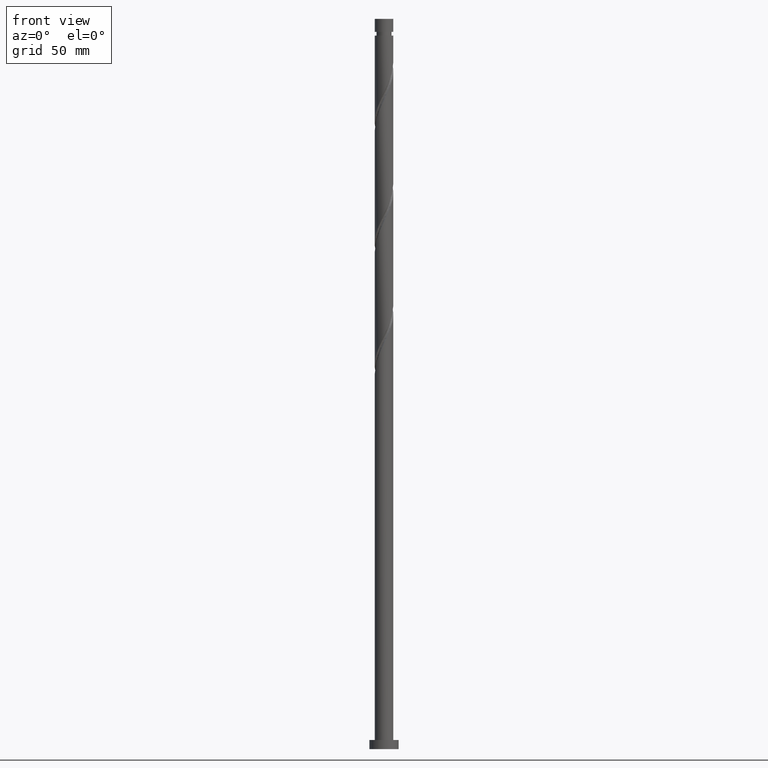
[diagram: clean part render]
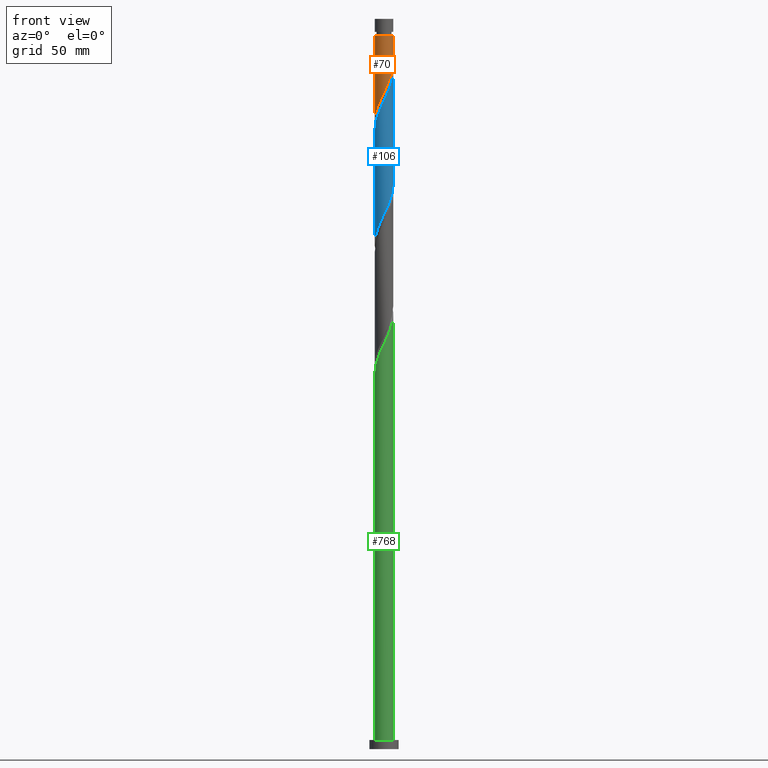
[diagram: same view with three faces highlighted in distinct colors, each labeled with its STEP entity id]
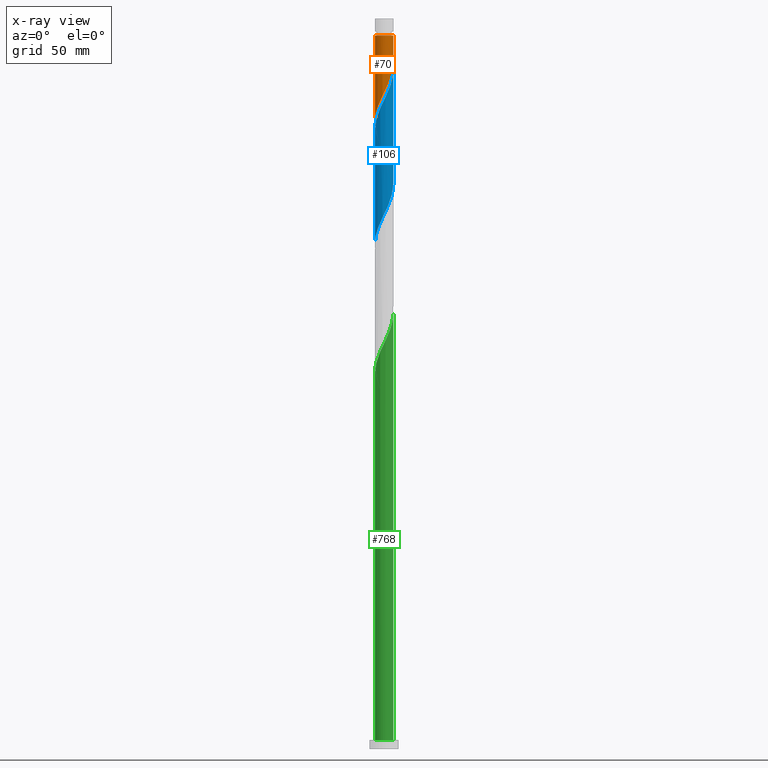
[diagram: x-ray of the same camera — body ghosted, the three highlighted faces saturated]
A machine part, front view with three faces highlighted in distinct colors.
The next image is the same camera in x-ray (body ghosted, the three faces saturated) — at least one of them is partly hidden behind the body in this view.
Their STEP definitions:

[orange] entity #70 — the highlighted cylindrical surface (edge-blend (fillet) strip) has radius 5.1 mm, axis along (-0, -0, -1).
#29 = VERTEX_POINT ( 'NONE', #1865 ) ;
#41 = CARTESIAN_POINT ( 'NONE',  ( 4.703541288989194769, -2.043044105940180710, 371.9575417927412673 ) ) ;
#70 = ADVANCED_FACE ( 'NONE', ( #319 ), #788, .T. ) ;
#85 = CARTESIAN_POINT ( 'NONE',  ( -0.4895762179909071699, -5.104668941549566519, 358.6242084594079529 ) ) ;
#103 = CARTESIAN_POINT ( 'NONE',  ( -4.121098741290858847, -3.051864191043557994, 349.7353195705190387 ) ) ;
#149 = EDGE_LOOP ( 'NONE', ( #749, #1388, #1095, #627 ) ) ;
#232 = DIRECTION ( 'NONE',  ( -1.000000000000000000, 0.000000000000000000, 0.000000000000000000 ) ) ;
#250 = CARTESIAN_POINT ( 'NONE',  ( -4.665561090286798773, -2.128349028905951457, 347.5130973482968102 ) ) ;
#263 = CARTESIAN_POINT ( 'NONE',  ( 3.820951375190243748, -3.377918084920322528, 368.6242084594081803 ) ) ;
#264 = CARTESIAN_POINT ( 'NONE',  ( 5.100000000000000533, 1.554635203749183559E-15, 376.3052072584851544 ) ) ;
#319 = FACE_OUTER_BOUND ( 'NONE', #149, .T. ) ;
#333 = CARTESIAN_POINT ( 'NONE',  ( -5.099999999999999645, 0.000000000000000000, 400.0000000000000000 ) ) ;
#354 = AXIS2_PLACEMENT_3D ( 'NONE', #1103, #358, #232 ) ;
#358 = DIRECTION ( 'NONE',  ( -0.000000000000000000, -0.000000000000000000, -1.000000000000000000 ) ) ;
#376 = CARTESIAN_POINT ( 'NONE',  ( 5.076705030977431754, -0.4868942682435483116, 375.2908751260747522 ) ) ;
#388 = CARTESIAN_POINT ( 'NONE',  ( 0.5824425476983370320, -5.094908296983734708, 360.8464306816301814 ) ) ;
#395 = CARTESIAN_POINT ( 'NONE',  ( -3.758811671682789068, -3.446931217303476291, 350.8464306816301814 ) ) ;
#405 = CARTESIAN_POINT ( 'NONE',  ( -5.100000000000000533, -3.527826039276993498E-15, 342.9718739251517832 ) ) ;
#412 = VECTOR ( 'NONE', #1901, 1000.000000000000000 ) ;
#415 = CARTESIAN_POINT ( 'NONE',  ( 4.175984872295892103, -2.976319912643618615, 369.7353195705190387 ) ) ;
#447 = AXIS2_PLACEMENT_3D ( 'NONE', #1264, #1608, #526 ) ;
#489 = EDGE_CURVE ( 'NONE', #1335, #2008, #1430, .T. ) ;
#509 = CARTESIAN_POINT ( 'NONE',  ( 5.100000000000000533, 1.554635203749183559E-15, 376.3052072584852112 ) ) ;
#526 = DIRECTION ( 'NONE',  ( -1.000000000000000000, 0.000000000000000000, 0.000000000000000000 ) ) ;
#544 = CARTESIAN_POINT ( 'NONE',  ( -2.960015320744662670, -4.153108390224947932, 353.0686529038524100 ) ) ;
#562 =( BOUNDED_CURVE ( )  B_SPLINE_CURVE ( 2, ( #509, #830, #376, #975, #821, #41, #863, #415, #263, #724, #1948, #1982, #1515, #1200, #1784, #388, #735, #85, #1327, #714, #1034, #1176, #544, #1168, #395, #103, #1641, #250, #871, #1332, #880, #1955, #405 ),
 .UNSPECIFIED., .F., .T. ) 
 B_SPLINE_CURVE_WITH_KNOTS ( ( 3, 2, 2, 2, 2, 2, 2, 2, 2, 2, 2, 2, 2, 2, 2, 2, 3 ),
 ( 0.3045286012773114059, 0.3083333333333333481, 0.3166666666666666519, 0.3250000000000000111, 0.3333333333333333148, 0.3416666666666666741, 0.3499999999999999778, 0.3583333333333333370, 0.3666666666666666408, 0.3750000000000000000, 0.3833333333333333592, 0.3916666666666666630, 0.4000000000000000222, 0.4083333333333333259, 0.4166666666666666852, 0.4249999999999999889, 0.4295286012773114614 ),
 .UNSPECIFIED. ) 
 CURVE ( )  GEOMETRIC_REPRESENTATION_ITEM ( )  RATIONAL_B_SPLINE_CURVE ( ( 0.9066196499552257038, 0.9068171577856384280, 0.9090909090909373713, 0.9041108139711856451, 0.9090909090909373713, 0.9041108139711856451, 0.9090909090909373713, 0.9041108139711856451, 0.9090909090909373713, 0.9041108139711856451, 0.9090909090909373713, 0.9041108139711856451, 0.9090909090909373713, 0.9041108139711856451, 0.9090909090909373713, 0.9041108139711856451, 0.9090909090909373713, 0.9041108139711856451, 0.9090909090909373713, 0.9041108139711856451, 0.9090909090909373713, 0.9041108139711856451, 0.9090909090909373713, 0.9041108139711856451, 0.9090909090909373713, 0.9041108139711856451, 0.9090909090909373713, 0.9041108139711856451, 0.9090909090909373713, 0.9041108139711856451, 0.9090909090909373713, 0.9063845652764845884, 0.9066196499552257038 ) ) 
 REPRESENTATION_ITEM ( '' )  );
#627 = ORIENTED_EDGE ( 'NONE', *, *, #1075, .F. ) ;
#650 = CARTESIAN_POINT ( 'NONE',  ( 5.099999999999999645, 6.245698675651499853E-16, 400.0000000000000000 ) ) ;
#714 = CARTESIAN_POINT ( 'NONE',  ( -1.540198153706608064, -4.891331058450430369, 356.4019862371857812 ) ) ;
#724 = CARTESIAN_POINT ( 'NONE',  ( 3.465917878084596282, -3.779516257197026885, 367.5130973482970376 ) ) ;
#735 = CARTESIAN_POINT ( 'NONE',  ( 0.04643316485371489638, -5.099788619266650613, 359.7353195705190956 ) ) ;
#746 = VECTOR ( 'NONE', #1567, 1000.000000000000000 ) ;
#749 = ORIENTED_EDGE ( 'NONE', *, *, #489, .F. ) ;
#788 = CYLINDRICAL_SURFACE ( 'NONE', #354, 5.099999999999999645 ) ;
#799 = LINE ( 'NONE', #333, #746 ) ;
#821 = CARTESIAN_POINT ( 'NONE',  ( 4.864535835123824370, -1.531760787067013574, 373.0686529038524668 ) ) ;
#830 = CARTESIAN_POINT ( 'NONE',  ( 5.099999999999999645, -0.2440043963624241585, 375.7966587329211166 ) ) ;
#863 = CARTESIAN_POINT ( 'NONE',  ( 4.439763080642544324, -2.509682009291896776, 370.8464306816302951 ) ) ;
#871 = CARTESIAN_POINT ( 'NONE',  ( -4.835838561039001782, -1.620081915079675916, 346.4019862371857243 ) ) ;
#880 = CARTESIAN_POINT ( 'NONE',  ( -5.066997856243805387, -0.5792518664800763162, 344.1797640149635527 ) ) ;
#894 = CARTESIAN_POINT ( 'NONE',  ( 5.099999999999964118, 6.245698675651478159E-16, 390.8464306816302951 ) ) ;
#945 = EDGE_CURVE ( 'NONE', #1682, #29, #799, .T. ) ;
#975 = CARTESIAN_POINT ( 'NONE',  ( 5.025530381258453971, -1.020477468193841997, 374.1797640149636095 ) ) ;
#1034 = CARTESIAN_POINT ( 'NONE',  ( -2.031852096560607279, -4.677774797668464934, 355.2908751260746385 ) ) ;
#1075 = EDGE_CURVE ( 'NONE', #2008, #29, #562, .T. ) ;
#1095 = ORIENTED_EDGE ( 'NONE', *, *, #945, .T. ) ;
#1103 = CARTESIAN_POINT ( 'NONE',  ( 0.000000000000000000, 0.000000000000000000, 400.0000000000000000 ) ) ;
#1119 = EDGE_CURVE ( 'NONE', #1335, #1682, #1161, .T. ) ;
#1161 = CIRCLE ( 'NONE', #447, 5.099999999999964118 ) ;
#1168 = CARTESIAN_POINT ( 'NONE',  ( -3.396524602074721066, -3.841998243563394144, 351.9575417927413810 ) ) ;
#1176 = CARTESIAN_POINT ( 'NONE',  ( -2.523506039414603386, -4.464218536886502164, 354.1797640149636095 ) ) ;
#1200 = CARTESIAN_POINT ( 'NONE',  ( 1.629005779183732017, -4.862475711757237917, 363.0686529038524100 ) ) ;
#1264 = CARTESIAN_POINT ( 'NONE',  ( 0.000000000000000000, 0.000000000000000000, 390.8464306816302951 ) ) ;
#1327 = CARTESIAN_POINT ( 'NONE',  ( -1.014887185848756257, -4.997999999999998444, 357.5130973482968102 ) ) ;
#1332 = CARTESIAN_POINT ( 'NONE',  ( -5.006116031791203902, -1.111814801253403040, 345.2908751260746385 ) ) ;
#1335 = VERTEX_POINT ( 'NONE', #894 ) ;
#1388 = ORIENTED_EDGE ( 'NONE', *, *, #1119, .T. ) ;
#1430 = LINE ( 'NONE', #650, #412 ) ;
#1515 = CARTESIAN_POINT ( 'NONE',  ( 2.116689710232769972, -4.640002658468493024, 364.1797640149635527 ) ) ;
#1532 = CARTESIAN_POINT ( 'NONE',  ( -5.099999999999964118, 0.000000000000000000, 390.8464306816302951 ) ) ;
#1567 = DIRECTION ( 'NONE',  ( -0.000000000000000000, -0.000000000000000000, -1.000000000000000000 ) ) ;
#1608 = DIRECTION ( 'NONE',  ( -0.000000000000000000, -0.000000000000000000, -1.000000000000000000 ) ) ;
#1641 = CARTESIAN_POINT ( 'NONE',  ( -4.393329915788829254, -2.590106609974753393, 348.6242084594080097 ) ) ;
#1682 = VERTEX_POINT ( 'NONE', #1532 ) ;
#1784 = CARTESIAN_POINT ( 'NONE',  ( 1.105724163441033525, -4.978692004370486757, 361.9575417927413241 ) ) ;
#1865 = CARTESIAN_POINT ( 'NONE',  ( -5.100000000000000533, -3.527826039276993498E-15, 342.9718739251517832 ) ) ;
#1901 = DIRECTION ( 'NONE',  ( -0.000000000000000000, -0.000000000000000000, -1.000000000000000000 ) ) ;
#1948 = CARTESIAN_POINT ( 'NONE',  ( 3.035145759683200328, -4.098522931188389506, 366.4019862371857812 ) ) ;
#1955 = CARTESIAN_POINT ( 'NONE',  ( -5.099999999999998757, -0.2905660609768035973, 343.5774652345363052 ) ) ;
#1982 = CARTESIAN_POINT ( 'NONE',  ( 2.604373641281806151, -4.417529605179754348, 365.2908751260747522 ) ) ;
#2008 = VERTEX_POINT ( 'NONE', #264 ) ;

[blue] entity #106 — the highlighted cylindrical surface (edge-blend (fillet) strip) has radius 5.1 mm, axis along (-0, -0, -1).
#6 = CARTESIAN_POINT ( 'NONE',  ( -4.439763080642553206, -2.509682009291899440, 344.1797640149635527 ) ) ;
#15 = ORIENTED_EDGE ( 'NONE', *, *, #679, .F. ) ;
#22 = VECTOR ( 'NONE', #730, 1000.000000000000000 ) ;
#73 = CARTESIAN_POINT ( 'NONE',  ( 0.000000000000000000, 0.000000000000000000, 400.0000000000000000 ) ) ;
#89 = CARTESIAN_POINT ( 'NONE',  ( -1.540198153706608064, -4.891331058450430369, 289.7353195705190956 ) ) ;
#98 = EDGE_LOOP ( 'NONE', ( #484, #15, #1633, #298 ) ) ;
#106 = ADVANCED_FACE ( 'NONE', ( #849 ), #1762, .T. ) ;
#120 = CARTESIAN_POINT ( 'NONE',  ( -5.100000000000007638, -0.2440043963624179690, 339.2295359636727312 ) ) ;
#165 = CARTESIAN_POINT ( 'NONE',  ( 5.006116031791208343, -1.111814801253410145, 369.7353195705191524 ) ) ;
#176 = CARTESIAN_POINT ( 'NONE',  ( -2.116689710232775301, -4.640002658468502794, 350.8464306816302951 ) ) ;
#190 = CARTESIAN_POINT ( 'NONE',  ( -4.175984872295900985, -2.976319912643618615, 345.2908751260746385 ) ) ;
#201 = CARTESIAN_POINT ( 'NONE',  ( 2.523506039414605606, -4.464218536886509270, 360.8464306816302383 ) ) ;
#235 = CARTESIAN_POINT ( 'NONE',  ( -3.758811671682789068, -3.446931217303476291, 284.1797640149635527 ) ) ;
#244 = CARTESIAN_POINT ( 'NONE',  ( 4.864535835123824370, -1.531760787067013574, 306.4019862371857812 ) ) ;
#255 = CARTESIAN_POINT ( 'NONE',  ( 2.604373641281806151, -4.417529605179754348, 298.6242084594081234 ) ) ;
#298 = ORIENTED_EDGE ( 'NONE', *, *, #1404, .F. ) ;
#337 = CARTESIAN_POINT ( 'NONE',  ( 2.960015320744664002, -4.153108390224958590, 361.9575417927414946 ) ) ;
#347 = CARTESIAN_POINT ( 'NONE',  ( -1.629005779183738456, -4.862475711757243246, 351.9575417927413810 ) ) ;
#349 = LINE ( 'NONE', #1322, #1494 ) ;
#351 = DIRECTION ( 'NONE',  ( -1.000000000000000000, 0.000000000000000000, 0.000000000000000000 ) ) ;
#363 = CARTESIAN_POINT ( 'NONE',  ( 5.099999999999999645, -0.2440043963624225209, 309.1299920662543741 ) ) ;
#381 = CARTESIAN_POINT ( 'NONE',  ( 3.465917878084596282, -3.779516257197026885, 300.8464306816302951 ) ) ;
#389 = CARTESIAN_POINT ( 'NONE',  ( 3.035145759683200328, -4.098522931188389506, 299.7353195705190956 ) ) ;
#397 = CARTESIAN_POINT ( 'NONE',  ( 1.629005779183732017, -4.862475711757237917, 296.4019862371857243 ) ) ;
#453 = CARTESIAN_POINT ( 'NONE',  ( 5.100000000000004086, -0.2905660609768266345, 371.4487294620574289 ) ) ;
#484 = ORIENTED_EDGE ( 'NONE', *, *, #1336, .F. ) ;
#495 = CARTESIAN_POINT ( 'NONE',  ( -3.820951375190251742, -3.377918084920324304, 346.4019862371858949 ) ) ;
#531 = CARTESIAN_POINT ( 'NONE',  ( -4.121098741290858847, -3.051864191043557994, 283.0686529038524668 ) ) ;
#545 = VERTEX_POINT ( 'NONE', #1740 ) ;
#546 = EDGE_CURVE ( 'NONE', #1191, #640, #349, .T. ) ;
#549 = CARTESIAN_POINT ( 'NONE',  ( 0.04643316485371489638, -5.099788619266650613, 293.0686529038523531 ) ) ;
#581 = LINE ( 'NONE', #1806, #22 ) ;
#632 = CARTESIAN_POINT ( 'NONE',  ( -0.5824425476983398076, -5.094908296983741813, 354.1797640149637232 ) ) ;
#640 = VERTEX_POINT ( 'NONE', #1029 ) ;
#679 = EDGE_CURVE ( 'NONE', #1191, #545, #1742, .T. ) ;
#690 = DIRECTION ( 'NONE',  ( -0.000000000000000000, -0.000000000000000000, -1.000000000000000000 ) ) ;
#718 = CARTESIAN_POINT ( 'NONE',  ( 5.025530381258453971, -1.020477468193841997, 307.5130973482969239 ) ) ;
#730 = DIRECTION ( 'NONE',  ( -0.000000000000000000, -0.000000000000000000, -1.000000000000000000 ) ) ;
#779 =( BOUNDED_CURVE ( )  B_SPLINE_CURVE ( 2, ( #1885, #363, #987, #718, #244, #1620, #1163, #1777, #1941, #381, #389, #255, #1934, #397, #1320, #1194, #549, #1004, #884, #89, #1952, #1627, #1967, #1509, #235, #531, #1027, #874, #854, #866, #994, #1328, #1468 ),
 .UNSPECIFIED., .F., .T. ) 
 B_SPLINE_CURVE_WITH_KNOTS ( ( 3, 2, 2, 2, 2, 2, 2, 2, 2, 2, 2, 2, 2, 2, 2, 2, 3 ),
 ( 0.5545286012773114059, 0.5583333333333333481, 0.5666666666666666519, 0.5749999999999999556, 0.5833333333333333703, 0.5916666666666666741, 0.5999999999999999778, 0.6083333333333332815, 0.6166666666666666963, 0.6250000000000000000, 0.6333333333333333037, 0.6416666666666667185, 0.6500000000000000222, 0.6583333333333333259, 0.6666666666666666297, 0.6750000000000000444, 0.6795286012773112949 ),
 .UNSPECIFIED. ) 
 CURVE ( )  GEOMETRIC_REPRESENTATION_ITEM ( )  RATIONAL_B_SPLINE_CURVE ( ( 0.9066196499552257038, 0.9068171577856384280, 0.9090909090909373713, 0.9041108139711856451, 0.9090909090909373713, 0.9041108139711856451, 0.9090909090909373713, 0.9041108139711856451, 0.9090909090909373713, 0.9041108139711856451, 0.9090909090909373713, 0.9041108139711856451, 0.9090909090909373713, 0.9041108139711856451, 0.9090909090909373713, 0.9041108139711856451, 0.9090909090909373713, 0.9041108139711856451, 0.9090909090909373713, 0.9041108139711856451, 0.9090909090909373713, 0.9041108139711856451, 0.9090909090909373713, 0.9041108139711856451, 0.9090909090909373713, 0.9041108139711856451, 0.9090909090909373713, 0.9041108139711856451, 0.9090909090909373713, 0.9041108139711856451, 0.9090909090909373713, 0.9063845652764845884, 0.9066196499552257038 ) ) 
 REPRESENTATION_ITEM ( '' )  );
#783 = CARTESIAN_POINT ( 'NONE',  ( 4.393329915788834583, -2.590106609974761387, 366.4019862371856675 ) ) ;
#793 = CARTESIAN_POINT ( 'NONE',  ( -3.465917878084601611, -3.779516257197031326, 347.5130973482968670 ) ) ;
#802 = CARTESIAN_POINT ( 'NONE',  ( 4.835838561039007999, -1.620081915079683021, 368.6242084594080666 ) ) ;
#815 = CARTESIAN_POINT ( 'NONE',  ( 3.758811671682793953, -3.446931217303482953, 364.1797640149636663 ) ) ;
#849 = FACE_OUTER_BOUND ( 'NONE', #98, .T. ) ;
#854 = CARTESIAN_POINT ( 'NONE',  ( -4.835838561039001782, -1.620081915079675916, 279.7353195705190387 ) ) ;
#866 = CARTESIAN_POINT ( 'NONE',  ( -5.006116031791203902, -1.111814801253403040, 278.6242084594080666 ) ) ;
#874 = CARTESIAN_POINT ( 'NONE',  ( -4.665561090286798773, -2.128349028905951457, 280.8464306816302951 ) ) ;
#884 = CARTESIAN_POINT ( 'NONE',  ( -1.014887185848756257, -4.997999999999998444, 290.8464306816302383 ) ) ;
#938 = CARTESIAN_POINT ( 'NONE',  ( -1.105724163441039964, -4.978692004370493862, 353.0686529038524100 ) ) ;
#973 = DIRECTION ( 'NONE',  ( -0.000000000000000000, -0.000000000000000000, -1.000000000000000000 ) ) ;
#987 = CARTESIAN_POINT ( 'NONE',  ( 5.076705030977431754, -0.4868942682435483116, 308.6242084594080666 ) ) ;
#994 = CARTESIAN_POINT ( 'NONE',  ( -5.066997856243805387, -0.5792518664800763162, 277.5130973482967534 ) ) ;
#1004 = CARTESIAN_POINT ( 'NONE',  ( -0.4895762179909071699, -5.104668941549566519, 291.9575417927414378 ) ) ;
#1016 = VERTEX_POINT ( 'NONE', #1447 ) ;
#1027 = CARTESIAN_POINT ( 'NONE',  ( -4.393329915788829254, -2.590106609974753393, 281.9575417927413241 ) ) ;
#1029 = CARTESIAN_POINT ( 'NONE',  ( -5.099999999999998757, -6.861322678085339471E-15, 276.3052072584850976 ) ) ;
#1040 = CARTESIAN_POINT ( 'NONE',  ( -5.100000000000006750, 5.934520922004056829E-15, 338.7209874381086365 ) ) ;
#1073 = CARTESIAN_POINT ( 'NONE',  ( 5.100000000000006750, -6.278334476679353309E-16, 372.0543207714420078 ) ) ;
#1082 = CARTESIAN_POINT ( 'NONE',  ( -4.864535835123834140, -1.531760787067011131, 341.9575417927413241 ) ) ;
#1090 = CARTESIAN_POINT ( 'NONE',  ( -4.703541288989202762, -2.043044105940178934, 343.0686529038524100 ) ) ;
#1092 = AXIS2_PLACEMENT_3D ( 'NONE', #73, #973, #351 ) ;
#1163 = CARTESIAN_POINT ( 'NONE',  ( 4.439763080642544324, -2.509682009291896776, 304.1797640149635527 ) ) ;
#1191 = VERTEX_POINT ( 'NONE', #1996 ) ;
#1194 = CARTESIAN_POINT ( 'NONE',  ( 0.5824425476983370320, -5.094908296983734708, 294.1797640149635527 ) ) ;
#1225 = CARTESIAN_POINT ( 'NONE',  ( 4.665561090286806767, -2.128349028905955453, 367.5130973482968670 ) ) ;
#1320 = CARTESIAN_POINT ( 'NONE',  ( 1.105724163441033525, -4.978692004370486757, 295.2908751260745817 ) ) ;
#1322 = CARTESIAN_POINT ( 'NONE',  ( -5.099999999999999645, 0.000000000000000000, 400.0000000000000000 ) ) ;
#1328 = CARTESIAN_POINT ( 'NONE',  ( -5.099999999999997868, -0.2905660609768159208, 276.9107985678696764 ) ) ;
#1336 = EDGE_CURVE ( 'NONE', #545, #1016, #581, .T. ) ;
#1404 = EDGE_CURVE ( 'NONE', #1016, #640, #779, .T. ) ;
#1439 = CARTESIAN_POINT ( 'NONE',  ( 4.121098741290862399, -3.051864191043565100, 365.2908751260745817 ) ) ;
#1447 = CARTESIAN_POINT ( 'NONE',  ( 5.099999999999998757, 4.828338180874868254E-15, 309.6385405918184688 ) ) ;
#1468 = CARTESIAN_POINT ( 'NONE',  ( -5.099999999999997868, -6.861322678085339471E-15, 276.3052072584850976 ) ) ;
#1494 = VECTOR ( 'NONE', #690, 1000.000000000000000 ) ;
#1509 = CARTESIAN_POINT ( 'NONE',  ( -3.396524602074721066, -3.841998243563394144, 285.2908751260746385 ) ) ;
#1552 = CARTESIAN_POINT ( 'NONE',  ( -2.604373641281812812, -4.417529605179758789, 349.7353195705189819 ) ) ;
#1562 = CARTESIAN_POINT ( 'NONE',  ( -0.04643316485371932339, -5.099788619266658607, 355.2908751260746953 ) ) ;
#1596 = CARTESIAN_POINT ( 'NONE',  ( 0.4895762179909035616, -5.104668941549574512, 356.4019862371856675 ) ) ;
#1620 = CARTESIAN_POINT ( 'NONE',  ( 4.703541288989194769, -2.043044105940180710, 305.2908751260746385 ) ) ;
#1627 = CARTESIAN_POINT ( 'NONE',  ( -2.523506039414603386, -4.464218536886502164, 287.5130973482969807 ) ) ;
#1633 = ORIENTED_EDGE ( 'NONE', *, *, #546, .T. ) ;
#1694 = CARTESIAN_POINT ( 'NONE',  ( -3.035145759683209210, -4.098522931188393947, 348.6242084594080666 ) ) ;
#1703 = CARTESIAN_POINT ( 'NONE',  ( 1.014887185848756035, -4.998000000000005549, 357.5130973482969239 ) ) ;
#1714 = CARTESIAN_POINT ( 'NONE',  ( 3.396524602074723287, -3.841998243563401694, 363.0686529038524100 ) ) ;
#1727 = CARTESIAN_POINT ( 'NONE',  ( 2.031852096560605947, -4.677774797668474704, 359.7353195705192093 ) ) ;
#1740 = CARTESIAN_POINT ( 'NONE',  ( 5.100000000000005862, -6.278334476679353309E-16, 372.0543207714420078 ) ) ;
#1742 =( BOUNDED_CURVE ( )  B_SPLINE_CURVE ( 2, ( #1040, #120, #1871, #1884, #1082, #1090, #6, #190, #495, #793, #1694, #1552, #176, #347, #938, #632, #1562, #1596, #1703, #1848, #1727, #201, #337, #1714, #815, #1439, #783, #1225, #802, #165, #2013, #453, #1073 ),
 .UNSPECIFIED., .F., .T. ) 
 B_SPLINE_CURVE_WITH_KNOTS ( ( 3, 2, 2, 2, 2, 2, 2, 2, 2, 2, 2, 2, 2, 2, 2, 2, 3 ),
 ( 0.5545286012773114059, 0.5583333333333333481, 0.5666666666666666519, 0.5749999999999999556, 0.5833333333333332593, 0.5916666666666666741, 0.5999999999999999778, 0.6083333333333333925, 0.6166666666666666963, 0.6250000000000000000, 0.6333333333333333037, 0.6416666666666666075, 0.6500000000000000222, 0.6583333333333333259, 0.6666666666666667407, 0.6750000000000000444, 0.6795286012773111839 ),
 .UNSPECIFIED. ) 
 CURVE ( )  GEOMETRIC_REPRESENTATION_ITEM ( )  RATIONAL_B_SPLINE_CURVE ( ( 0.9066196499552316990, 0.9068171577856444232, 0.9090909090909433665, 0.9041108139711916403, 0.9090909090909433665, 0.9041108139711916403, 0.9090909090909433665, 0.9041108139711916403, 0.9090909090909433665, 0.9041108139711916403, 0.9090909090909433665, 0.9041108139711916403, 0.9090909090909433665, 0.9041108139711916403, 0.9090909090909433665, 0.9041108139711916403, 0.9090909090909433665, 0.9041108139711916403, 0.9090909090909433665, 0.9041108139711916403, 0.9090909090909433665, 0.9041108139711916403, 0.9090909090909433665, 0.9041108139711916403, 0.9090909090909433665, 0.9041108139711916403, 0.9090909090909433665, 0.9041108139711916403, 0.9090909090909433665, 0.9041108139711916403, 0.9090909090909433665, 0.9063845652764908056, 0.9066196499552316990 ) ) 
 REPRESENTATION_ITEM ( '' )  );
#1762 = CYLINDRICAL_SURFACE ( 'NONE', #1092, 5.099999999999999645 ) ;
#1777 = CARTESIAN_POINT ( 'NONE',  ( 4.175984872295892103, -2.976319912643618615, 303.0686529038524100 ) ) ;
#1806 = CARTESIAN_POINT ( 'NONE',  ( 5.099999999999999645, 6.245698675651499853E-16, 400.0000000000000000 ) ) ;
#1848 = CARTESIAN_POINT ( 'NONE',  ( 1.540198153706606288, -4.891331058450438363, 358.6242084594080097 ) ) ;
#1871 = CARTESIAN_POINT ( 'NONE',  ( -5.076705030977439748, -0.4868942682435446478, 339.7353195705191524 ) ) ;
#1884 = CARTESIAN_POINT ( 'NONE',  ( -5.025530381258461077, -1.020477468193841775, 340.8464306816302383 ) ) ;
#1885 = CARTESIAN_POINT ( 'NONE',  ( 5.099999999999997868, 4.828338180874867465E-15, 309.6385405918184688 ) ) ;
#1934 = CARTESIAN_POINT ( 'NONE',  ( 2.116689710232769972, -4.640002658468493024, 297.5130973482969239 ) ) ;
#1941 = CARTESIAN_POINT ( 'NONE',  ( 3.820951375190243748, -3.377918084920322528, 301.9575417927413241 ) ) ;
#1952 = CARTESIAN_POINT ( 'NONE',  ( -2.031852096560607279, -4.677774797668464934, 288.6242084594080666 ) ) ;
#1967 = CARTESIAN_POINT ( 'NONE',  ( -2.960015320744662670, -4.153108390224947932, 286.4019862371857243 ) ) ;
#1996 = CARTESIAN_POINT ( 'NONE',  ( -5.100000000000006750, 5.934520922004056040E-15, 338.7209874381086934 ) ) ;
#2013 = CARTESIAN_POINT ( 'NONE',  ( 5.066997856243814269, -0.5792518664800790917, 370.8464306816301814 ) ) ;

[green] entity #768 — the highlighted cylindrical surface (edge-blend (fillet) strip) has radius 5.1 mm, axis along (-0, -0, -1).
#32 = CARTESIAN_POINT ( 'NONE',  ( -3.820951375190251742, -3.377918084920324304, 213.0686529038524952 ) ) ;
#42 = CARTESIAN_POINT ( 'NONE',  ( 1.014887185848756035, -4.998000000000005549, 224.1797640149636379 ) ) ;
#75 = CARTESIAN_POINT ( 'NONE',  ( 5.100000000000006750, 3.213909315443002512E-15, 238.7209874381087502 ) ) ;
#91 =( BOUNDED_CURVE ( )  B_SPLINE_CURVE ( 2, ( #1456, #1895, #216, #1593, #1736, #353, #491, #479, #32, #1106, #198, #677, #1867, #976, #1907, #209, #1096, #822, #42, #1709, #666, #1287, #470, #322, #173, #234, #1473, #1015, #1774, #1632, #1010, #241, #75 ),
 .UNSPECIFIED., .F., .T. ) 
 B_SPLINE_CURVE_WITH_KNOTS ( ( 3, 2, 2, 2, 2, 2, 2, 2, 2, 2, 2, 2, 2, 2, 2, 2, 3 ),
 ( 0.05452860127731191942, 0.05833333333333334814, 0.06666666666666665186, 0.07499999999999995559, 0.08333333333333337034, 0.09166666666666667407, 0.09999999999999997780, 0.1083333333333332815, 0.1166666666666666963, 0.1250000000000000000, 0.1333333333333333037, 0.1416666666666667185, 0.1500000000000000222, 0.1583333333333333259, 0.1666666666666666297, 0.1750000000000000444, 0.1795286012773116002 ),
 .UNSPECIFIED. ) 
 CURVE ( )  GEOMETRIC_REPRESENTATION_ITEM ( )  RATIONAL_B_SPLINE_CURVE ( ( 0.9066196499552316990, 0.9068171577856447563, 0.9090909090909433665, 0.9041108139711916403, 0.9090909090909433665, 0.9041108139711916403, 0.9090909090909433665, 0.9041108139711916403, 0.9090909090909433665, 0.9041108139711916403, 0.9090909090909433665, 0.9041108139711916403, 0.9090909090909433665, 0.9041108139711916403, 0.9090909090909433665, 0.9041108139711916403, 0.9090909090909433665, 0.9041108139711916403, 0.9090909090909433665, 0.9041108139711916403, 0.9090909090909433665, 0.9041108139711916403, 0.9090909090909433665, 0.9041108139711916403, 0.9090909090909433665, 0.9041108139711916403, 0.9090909090909433665, 0.9041108139711916403, 0.9090909090909433665, 0.9041108139711916403, 0.9090909090909433665, 0.9063845652764904726, 0.9066196499552316990 ) ) 
 REPRESENTATION_ITEM ( '' )  );
#99 = DIRECTION ( 'NONE',  ( -0.000000000000000000, -0.000000000000000000, -1.000000000000000000 ) ) ;
#105 = VERTEX_POINT ( 'NONE', #215 ) ;
#110 = CARTESIAN_POINT ( 'NONE',  ( 5.100000000000006750, 3.213909315443002512E-15, 238.7209874381087786 ) ) ;
#173 = CARTESIAN_POINT ( 'NONE',  ( 3.758811671682793953, -3.446931217303482953, 230.8464306816302383 ) ) ;
#198 = CARTESIAN_POINT ( 'NONE',  ( -3.035145759683209210, -4.098522931188393947, 215.2908751260747238 ) ) ;
#209 = CARTESIAN_POINT ( 'NONE',  ( -0.5824425476983398076, -5.094908296983741813, 220.8464306816302098 ) ) ;
#215 = CARTESIAN_POINT ( 'NONE',  ( 5.099999999999999645, 6.245698675651499853E-16, 5.000000000000000000 ) ) ;
#216 = CARTESIAN_POINT ( 'NONE',  ( -5.076705030977439748, -0.4868942682435446478, 206.4019862371858380 ) ) ;
#234 = CARTESIAN_POINT ( 'NONE',  ( 4.121098741290862399, -3.051864191043565100, 231.9575417927413810 ) ) ;
#241 = CARTESIAN_POINT ( 'NONE',  ( 5.100000000000006750, -0.2905660609768000446, 238.1153961287241998 ) ) ;
#322 = CARTESIAN_POINT ( 'NONE',  ( 3.396524602074723287, -3.841998243563401694, 229.7353195705190672 ) ) ;
#353 = CARTESIAN_POINT ( 'NONE',  ( -4.703541288989202762, -2.043044105940178934, 209.7353195705191524 ) ) ;
#369 = DIRECTION ( 'NONE',  ( 1.000000000000000000, 0.000000000000000000, 0.000000000000000000 ) ) ;
#416 = ORIENTED_EDGE ( 'NONE', *, *, #764, .F. ) ;
#420 = CARTESIAN_POINT ( 'NONE',  ( -5.100000000000006750, -3.349939895771055228E-14, 205.3876541047755495 ) ) ;
#439 = CARTESIAN_POINT ( 'NONE',  ( 0.000000000000000000, 0.000000000000000000, 400.0000000000000000 ) ) ;
#470 = CARTESIAN_POINT ( 'NONE',  ( 2.960015320744664002, -4.153108390224958590, 228.6242084594080382 ) ) ;
#479 = CARTESIAN_POINT ( 'NONE',  ( -4.175984872295900985, -2.976319912643618615, 211.9575417927413241 ) ) ;
#491 = CARTESIAN_POINT ( 'NONE',  ( -4.439763080642553206, -2.509682009291899440, 210.8464306816302951 ) ) ;
#566 = DIRECTION ( 'NONE',  ( -1.000000000000000000, 0.000000000000000000, 0.000000000000000000 ) ) ;
#572 = EDGE_CURVE ( 'NONE', #1306, #903, #856, .T. ) ;
#604 = AXIS2_PLACEMENT_3D ( 'NONE', #439, #750, #566 ) ;
#641 = VECTOR ( 'NONE', #99, 1000.000000000000000 ) ;
#666 = CARTESIAN_POINT ( 'NONE',  ( 2.031852096560605947, -4.677774797668474704, 226.4019862371858380 ) ) ;
#677 = CARTESIAN_POINT ( 'NONE',  ( -2.604373641281812812, -4.417529605179758789, 216.4019862371858096 ) ) ;
#750 = DIRECTION ( 'NONE',  ( -0.000000000000000000, -0.000000000000000000, -1.000000000000000000 ) ) ;
#764 = EDGE_CURVE ( 'NONE', #1317, #105, #883, .T. ) ;
#768 = ADVANCED_FACE ( 'NONE', ( #1356 ), #1483, .T. ) ;
#822 = CARTESIAN_POINT ( 'NONE',  ( 0.4895762179909035616, -5.104668941549574512, 223.0686529038524952 ) ) ;
#856 = LINE ( 'NONE', #1778, #1530 ) ;
#883 = LINE ( 'NONE', #1683, #641 ) ;
#903 = VERTEX_POINT ( 'NONE', #1723 ) ;
#914 = ORIENTED_EDGE ( 'NONE', *, *, #1937, .F. ) ;
#976 = CARTESIAN_POINT ( 'NONE',  ( -1.629005779183738456, -4.862475711757243246, 218.6242084594080382 ) ) ;
#1000 = CARTESIAN_POINT ( 'NONE',  ( 0.000000000000000000, 0.000000000000000000, 5.000000000000000000 ) ) ;
#1010 = CARTESIAN_POINT ( 'NONE',  ( 5.066997856243814269, -0.5792518664800790917, 237.5130973482969523 ) ) ;
#1015 = CARTESIAN_POINT ( 'NONE',  ( 4.665561090286806767, -2.128349028905955453, 234.1797640149635527 ) ) ;
#1031 = EDGE_CURVE ( 'NONE', #903, #105, #1600, .T. ) ;
#1096 = CARTESIAN_POINT ( 'NONE',  ( -0.04643316485371932339, -5.099788619266658607, 221.9575417927413525 ) ) ;
#1106 = CARTESIAN_POINT ( 'NONE',  ( -3.465917878084601611, -3.779516257197031326, 214.1797640149636095 ) ) ;
#1286 = DIRECTION ( 'NONE',  ( 0.000000000000000000, 0.000000000000000000, 1.000000000000000000 ) ) ;
#1287 = CARTESIAN_POINT ( 'NONE',  ( 2.523506039414605606, -4.464218536886509270, 227.5130973482969523 ) ) ;
#1306 = VERTEX_POINT ( 'NONE', #420 ) ;
#1310 = DIRECTION ( 'NONE',  ( -0.000000000000000000, -0.000000000000000000, -1.000000000000000000 ) ) ;
#1317 = VERTEX_POINT ( 'NONE', #110 ) ;
#1352 = ORIENTED_EDGE ( 'NONE', *, *, #1031, .T. ) ;
#1356 = FACE_OUTER_BOUND ( 'NONE', #1721, .T. ) ;
#1456 = CARTESIAN_POINT ( 'NONE',  ( -5.100000000000006750, -3.349939895771055228E-14, 205.3876541047755495 ) ) ;
#1473 = CARTESIAN_POINT ( 'NONE',  ( 4.393329915788834583, -2.590106609974761387, 233.0686529038525237 ) ) ;
#1483 = CYLINDRICAL_SURFACE ( 'NONE', #604, 5.099999999999999645 ) ;
#1530 = VECTOR ( 'NONE', #1310, 1000.000000000000000 ) ;
#1593 = CARTESIAN_POINT ( 'NONE',  ( -5.025530381258461077, -1.020477468193841775, 207.5130973482969239 ) ) ;
#1600 = CIRCLE ( 'NONE', #1844, 5.099999999999999645 ) ;
#1632 = CARTESIAN_POINT ( 'NONE',  ( 5.006116031791208343, -1.111814801253410145, 236.4019862371858096 ) ) ;
#1683 = CARTESIAN_POINT ( 'NONE',  ( 5.099999999999999645, 6.245698675651499853E-16, 400.0000000000000000 ) ) ;
#1709 = CARTESIAN_POINT ( 'NONE',  ( 1.540198153706606288, -4.891331058450438363, 225.2908751260746953 ) ) ;
#1721 = EDGE_LOOP ( 'NONE', ( #416, #914, #1991, #1352 ) ) ;
#1723 = CARTESIAN_POINT ( 'NONE',  ( -5.099999999999999645, 0.000000000000000000, 5.000000000000000000 ) ) ;
#1736 = CARTESIAN_POINT ( 'NONE',  ( -4.864535835123834140, -1.531760787067011131, 208.6242084594080382 ) ) ;
#1774 = CARTESIAN_POINT ( 'NONE',  ( 4.835838561039007999, -1.620081915079683021, 235.2908751260746953 ) ) ;
#1778 = CARTESIAN_POINT ( 'NONE',  ( -5.099999999999999645, 0.000000000000000000, 400.0000000000000000 ) ) ;
#1844 = AXIS2_PLACEMENT_3D ( 'NONE', #1000, #1286, #369 ) ;
#1867 = CARTESIAN_POINT ( 'NONE',  ( -2.116689710232775301, -4.640002658468502794, 217.5130973482969239 ) ) ;
#1895 = CARTESIAN_POINT ( 'NONE',  ( -5.100000000000004086, -0.2440043963624508316, 205.8962026303396442 ) ) ;
#1907 = CARTESIAN_POINT ( 'NONE',  ( -1.105724163441039964, -4.978692004370493862, 219.7353195705191524 ) ) ;
#1937 = EDGE_CURVE ( 'NONE', #1306, #1317, #91, .T. ) ;
#1991 = ORIENTED_EDGE ( 'NONE', *, *, #572, .T. ) ;